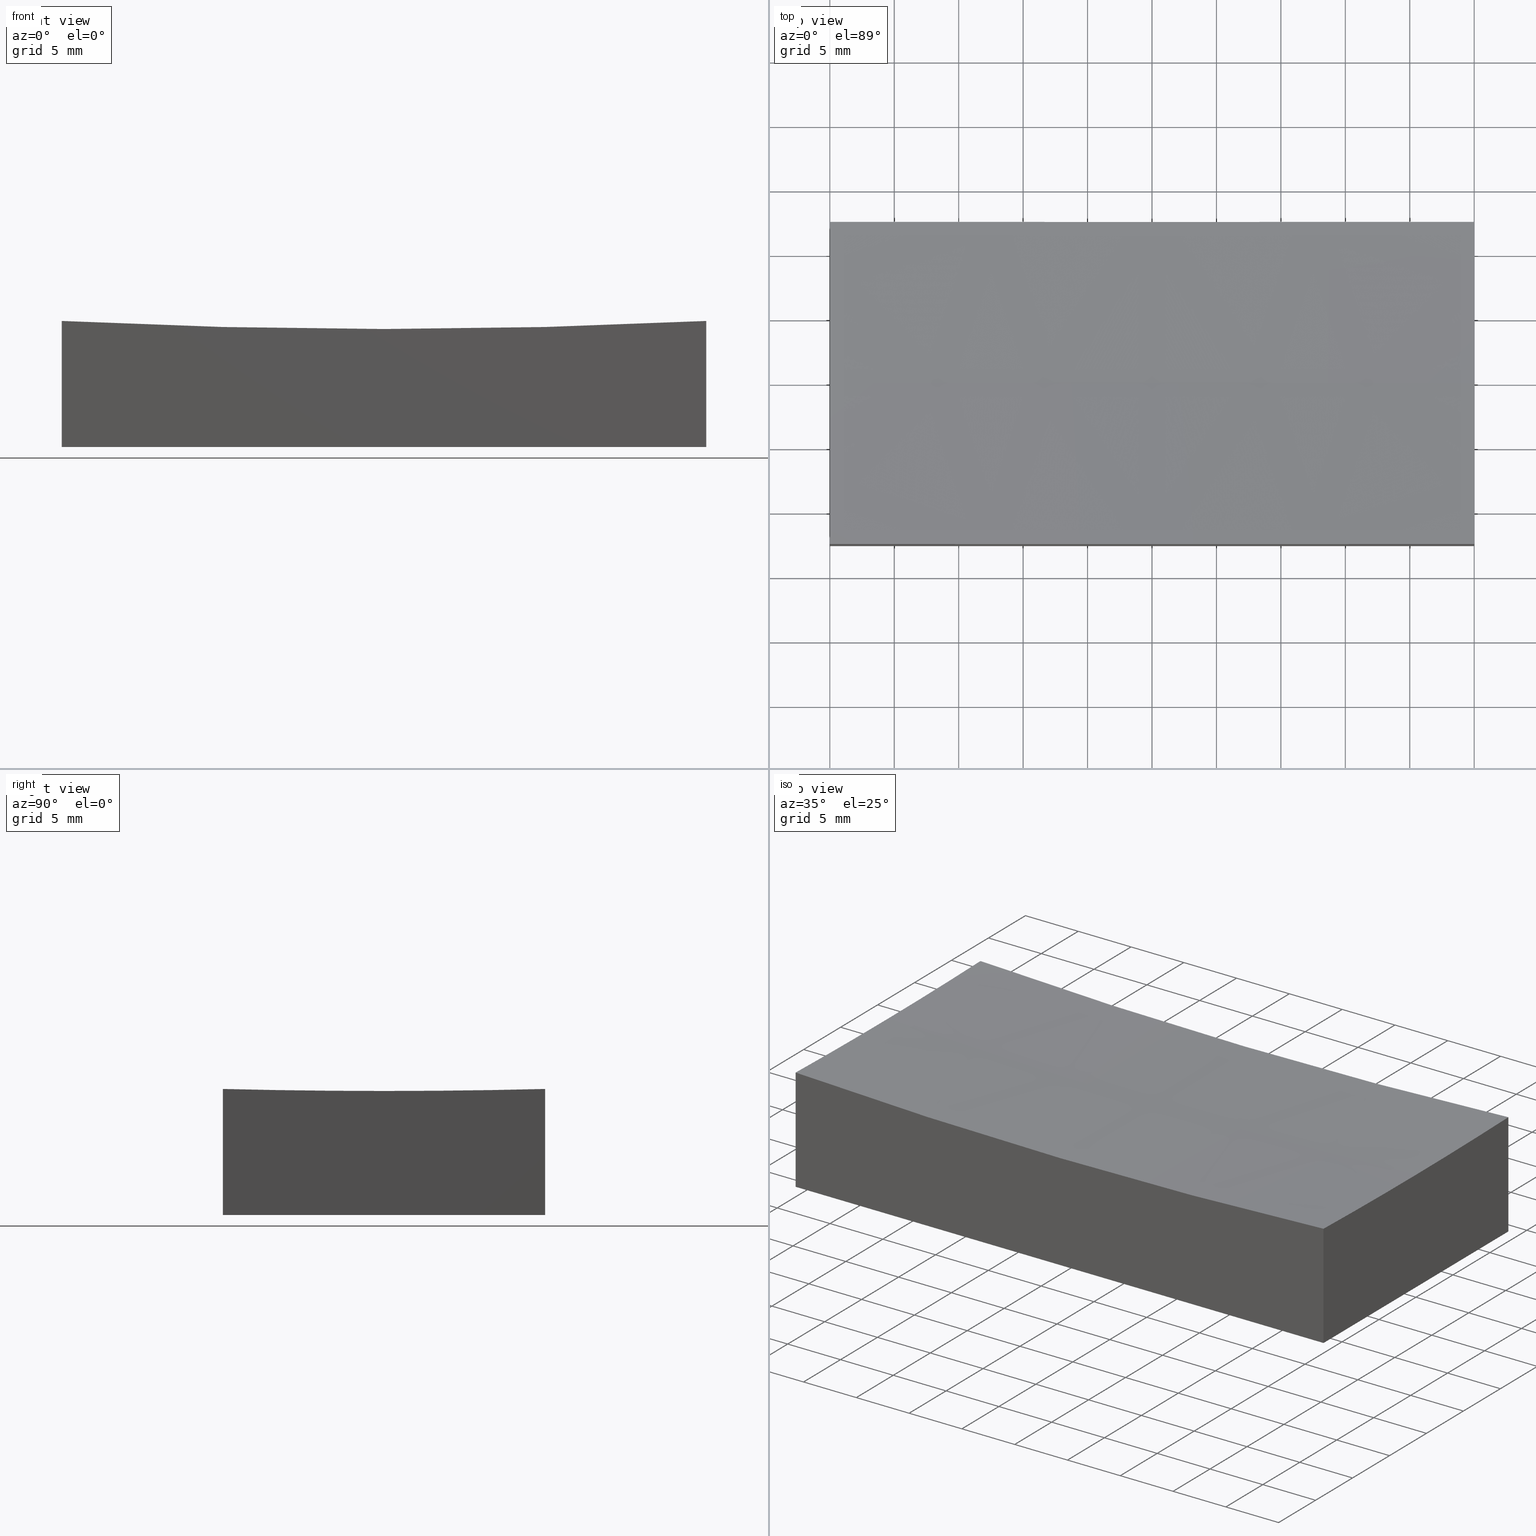
[diagram: canonical four-view strip — front | top / right | iso, engineering-drawing reading convention]
A machine part, canonical four-view strip (front | top / right | iso — engineering-drawing reading convention). The complete STEP part file that produces these views, byte-faithful:
ISO-10303-21;
HEADER;
FILE_DESCRIPTION (( 'STEP AP214' ),
    '1' );
FILE_NAME ('GM13-50x25-250.STEP',
    '2024-08-13T03:17:18',
    ( 'Windows User' ),
    ( 'P R C' ),
    'SwSTEP 2.0',
    'SolidWorks 2022',
    '' );
FILE_SCHEMA (( 'AUTOMOTIVE_DESIGN' ));
ENDSEC;

DATA;
#1 = AXIS2_PLACEMENT_3D ( 'NONE', #247, #93, #32 ) ;
#2 = FILL_AREA_STYLE_COLOUR ( '', #41 ) ;
#3 = ORIENTED_EDGE ( 'NONE', *, *, #36, .F. ) ;
#4 =( LENGTH_UNIT ( ) NAMED_UNIT ( * ) SI_UNIT ( .MILLI., .METRE. ) );
#5 = ORIENTED_EDGE ( 'NONE', *, *, #74, .F. ) ;
#6 = EDGE_CURVE ( 'NONE', #144, #97, #69, .T. ) ;
#7 = FILL_AREA_STYLE_COLOUR ( '', #22 ) ;
#8 = FACE_OUTER_BOUND ( 'NONE', #66, .T. ) ;
#9 = PRODUCT_CONTEXT ( 'NONE', #175, 'mechanical' ) ;
#10 = DIRECTION ( 'NONE',  ( 2.775557561562891351E-16, 1.000000000000000000, -0.000000000000000000 ) ) ;
#11 = ORIENTED_EDGE ( 'NONE', *, *, #61, .T. ) ;
#12 = EDGE_CURVE ( 'NONE', #127, #234, #188, .T. ) ;
#13 = CARTESIAN_POINT ( 'NONE',  ( 24.99999999999999645, -12.50000000000000000, 9.781861307103511649 ) ) ;
#14 = CIRCLE ( 'NONE', #90, 499.9999999999998863 ) ;
#15 = DIRECTION ( 'NONE',  ( -1.000000000000000000, -0.000000000000000000, -0.000000000000000000 ) ) ;
#16 = CARTESIAN_POINT ( 'NONE',  ( -25.00000000000000000, 12.50000000000000000, 15.00000000000000000 ) ) ;
#17 = CARTESIAN_POINT ( 'NONE',  ( 25.00000000000000000, -3.851859888774471706E-31, 9.625391114045534380 ) ) ;
#18 = CARTESIAN_POINT ( 'NONE',  ( -25.00000000000000000, 12.50000000000000000, 0.000000000000000000 ) ) ;
#19 = AXIS2_PLACEMENT_3D ( 'NONE', #75, #155, #98 ) ;
#20 = APPLICATION_PROTOCOL_DEFINITION ( 'draft international standard', 'automotive_design', 1998, #35 ) ;
#21 = APPLICATION_PROTOCOL_DEFINITION ( 'draft international standard', 'automotive_design', 1998, #175 ) ;
#22 = COLOUR_RGB ( '',1.000000000000000000, 1.000000000000000000, 1.000000000000000000 ) ;
#23 = UNCERTAINTY_MEASURE_WITH_UNIT (LENGTH_MEASURE( 1.000000000000000082E-05 ), #26, 'distance_accuracy_value', 'NONE');
#24 = DIRECTION ( 'NONE',  ( 1.000000000000000000, 0.000000000000000000, 0.000000000000000000 ) ) ;
#25 = ORIENTED_EDGE ( 'NONE', *, *, #120, .F. ) ;
#26 =( LENGTH_UNIT ( ) NAMED_UNIT ( * ) SI_UNIT ( .MILLI., .METRE. ) );
#27 = VERTEX_POINT ( 'NONE', #51 ) ;
#28 = LINE ( 'NONE', #109, #128 ) ;
#29 = AXIS2_PLACEMENT_3D ( 'NONE', #16, #158, #42 ) ;
#30 = LINE ( 'NONE', #31, #209 ) ;
#31 = CARTESIAN_POINT ( 'NONE',  ( -25.00000000000000000, 12.50000000000000000, 15.00000000000000000 ) ) ;
#32 = DIRECTION ( 'NONE',  ( -2.775557561562891351E-16, -1.000000000000000000, 0.000000000000000000 ) ) ;
#33 = AXIS2_PLACEMENT_3D ( 'NONE', #172, #248, #216 ) ;
#34 = CARTESIAN_POINT ( 'NONE',  ( 0.000000000000000000, -12.49999999999999645, 509.0000000000000000 ) ) ;
#35 = APPLICATION_CONTEXT ( 'automotive_design' ) ;
#36 = EDGE_CURVE ( 'NONE', #140, #234, #28, .T. ) ;
#37 = CARTESIAN_POINT ( 'NONE',  ( -25.00000000000000000, -3.061616997868383043E-15, 9.625391114045534380 ) ) ;
#38 =( LENGTH_UNIT ( ) NAMED_UNIT ( * ) SI_UNIT ( .MILLI., .METRE. ) );
#39 = DIRECTION ( 'NONE',  ( -1.387778780781445676E-16, 1.000000000000000000, 0.000000000000000000 ) ) ;
#40 = PLANE ( 'NONE',  #29 ) ;
#41 = COLOUR_RGB ( '',1.000000000000000000, 1.000000000000000000, 1.000000000000000000 ) ;
#42 = DIRECTION ( 'NONE',  ( 0.000000000000000000, -0.000000000000000000, -1.000000000000000000 ) ) ;
#43 = ORIENTED_EDGE ( 'NONE', *, *, #12, .F. ) ;
#44 = VECTOR ( 'NONE', #15, 1000.000000000000000 ) ;
#45 = PRESENTATION_STYLE_ASSIGNMENT (( #239 ) ) ;
#46 = ORIENTED_EDGE ( 'NONE', *, *, #12, .T. ) ;
#47 = ADVANCED_BREP_SHAPE_REPRESENTATION ( 'GM13-50x25-250', ( #222, #55 ), #112 ) ;
#48 = ADVANCED_FACE ( 'NONE', ( #8 ), #126, .F. ) ;
#49 = VERTEX_POINT ( 'NONE', #166 ) ;
#50 =( NAMED_UNIT ( * ) PLANE_ANGLE_UNIT ( ) SI_UNIT ( $, .RADIAN. ) );
#51 = CARTESIAN_POINT ( 'NONE',  ( 25.00000000000000355, 12.50000000000000000, 0.000000000000000000 ) ) ;
#52 = EDGE_CURVE ( 'NONE', #234, #27, #223, .T. ) ;
#53 = CARTESIAN_POINT ( 'NONE',  ( -25.00000000000000000, 12.50000000000000000, 0.000000000000000000 ) ) ;
#54 = DIRECTION ( 'NONE',  ( 0.000000000000000000, 0.000000000000000000, 1.000000000000000000 ) ) ;
#55 = AXIS2_PLACEMENT_3D ( 'NONE', #224, #203, #24 ) ;
#56 = CARTESIAN_POINT ( 'NONE',  ( -25.00000000000000000, 12.50000000000000000, 9.781861307103511649 ) ) ;
#57 = CARTESIAN_POINT ( 'NONE',  ( 25.00000000000000000, -6.938893903907228378E-15, 509.0000000000000000 ) ) ;
#58 = VECTOR ( 'NONE', #147, 1000.000000000000000 ) ;
#59 = PRODUCT_DEFINITION ( 'δ֪', '', #186, #184 ) ;
#60 = CARTESIAN_POINT ( 'NONE',  ( -25.00000000000000000, 12.50000000000000000, 15.00000000000000000 ) ) ;
#61 = EDGE_CURVE ( 'NONE', #71, #49, #30, .T. ) ;
#62 = PRESENTATION_LAYER_ASSIGNMENT (  '', '', ( #157 ) ) ;
#63 = CARTESIAN_POINT ( 'NONE',  ( 24.99999999999999645, -12.50000000000000000, 0.000000000000000000 ) ) ;
#64 = CIRCLE ( 'NONE', #205, 499.8437255783051683 ) ;
#65 = LINE ( 'NONE', #251, #142 ) ;
#66 = EDGE_LOOP ( 'NONE', ( #214, #207, #5, #107, #100 ) ) ;
#67 = AXIS2_PLACEMENT_3D ( 'NONE', #57, #228, #111 ) ;
#68 = ORIENTED_EDGE ( 'NONE', *, *, #74, .T. ) ;
#69 = CIRCLE ( 'NONE', #179, 499.3746088859545011 ) ;
#70 =( NAMED_UNIT ( * ) SI_UNIT ( $, .STERADIAN. ) SOLID_ANGLE_UNIT ( ) );
#71 = VERTEX_POINT ( 'NONE', #56 ) ;
#72 = ORIENTED_EDGE ( 'NONE', *, *, #52, .F. ) ;
#73 = DIRECTION ( 'NONE',  ( 1.224646799147353207E-16, -1.000000000000000000, -9.557981066130911132E-36 ) ) ;
#74 = EDGE_CURVE ( 'NONE', #190, #180, #14, .T. ) ;
#75 = CARTESIAN_POINT ( 'NONE',  ( 0.000000000000000000, 0.000000000000000000, 0.000000000000000000 ) ) ;
#76 = ORIENTED_EDGE ( 'NONE', *, *, #61, .F. ) ;
#77 = MECHANICAL_DESIGN_GEOMETRIC_PRESENTATION_REPRESENTATION (  '', ( #157 ), #235 ) ;
#78 = PRESENTATION_STYLE_ASSIGNMENT (( #215 ) ) ;
#79 = ORIENTED_EDGE ( 'NONE', *, *, #102, .T. ) ;
#80 = LINE ( 'NONE', #230, #201 ) ;
#81 = ORIENTED_EDGE ( 'NONE', *, *, #6, .T. ) ;
#82 = DIRECTION ( 'NONE',  ( -0.000000000000000000, -0.000000000000000000, -1.000000000000000000 ) ) ;
#83 = ORIENTED_EDGE ( 'NONE', *, *, #94, .F. ) ;
#84 =( NAMED_UNIT ( * ) SI_UNIT ( $, .STERADIAN. ) SOLID_ANGLE_UNIT ( ) );
#85 = EDGE_CURVE ( 'NONE', #232, #71, #113, .T. ) ;
#86 = DIRECTION ( 'NONE',  ( 1.000000000000000000, 0.000000000000000000, 0.000000000000000000 ) ) ;
#87 = DIRECTION ( 'NONE',  ( 1.000000000000000000, 0.000000000000000000, 0.000000000000000000 ) ) ;
#88 = ORIENTED_EDGE ( 'NONE', *, *, #85, .F. ) ;
#89 = ORIENTED_EDGE ( 'NONE', *, *, #102, .F. ) ;
#90 = AXIS2_PLACEMENT_3D ( 'NONE', #171, #110, #54 ) ;
#91 = FACE_OUTER_BOUND ( 'NONE', #119, .T. ) ;
#92 = PLANE ( 'NONE',  #33 ) ;
#93 = DIRECTION ( 'NONE',  ( -1.000000000000000000, 2.775557561562891351E-16, 0.000000000000000000 ) ) ;
#94 = EDGE_CURVE ( 'NONE', #127, #190, #189, .T. ) ;
#95 = STYLED_ITEM ( 'NONE', ( #78 ), #222 ) ;
#96 = FACE_OUTER_BOUND ( 'NONE', #176, .T. ) ;
#97 = VERTEX_POINT ( 'NONE', #192 ) ;
#98 = DIRECTION ( 'NONE',  ( 1.000000000000000000, 0.000000000000000000, 0.000000000000000000 ) ) ;
#99 = CARTESIAN_POINT ( 'NONE',  ( 25.00000000000000000, -6.938893903907228378E-15, 509.0000000000000000 ) ) ;
#100 = ORIENTED_EDGE ( 'NONE', *, *, #85, .T. ) ;
#101 = VECTOR ( 'NONE', #10, 1000.000000000000000 ) ;
#102 = EDGE_CURVE ( 'NONE', #97, #127, #64, .T. ) ;
#103 = UNCERTAINTY_MEASURE_WITH_UNIT (LENGTH_MEASURE( 1.000000000000000082E-05 ), #4, 'distance_accuracy_value', 'NONE');
#104 = ADVANCED_FACE ( 'NONE', ( #91 ), #114, .F. ) ;
#105 = ORIENTED_EDGE ( 'NONE', *, *, #120, .T. ) ;
#106 = ORIENTED_EDGE ( 'NONE', *, *, #108, .F. ) ;
#107 = ORIENTED_EDGE ( 'NONE', *, *, #246, .T. ) ;
#108 = EDGE_CURVE ( 'NONE', #144, #180, #173, .T. ) ;
#109 = CARTESIAN_POINT ( 'NONE',  ( -24.99999999999999645, -12.50000000000000000, 0.000000000000000000 ) ) ;
#110 = DIRECTION ( 'NONE',  ( 0.000000000000000000, 1.000000000000000000, -0.000000000000000000 ) ) ;
#111 = DIRECTION ( 'NONE',  ( -2.779033527310119773E-16, -1.000000000000000000, 0.000000000000000000 ) ) ;
#112 =( GEOMETRIC_REPRESENTATION_CONTEXT ( 3 ) GLOBAL_UNCERTAINTY_ASSIGNED_CONTEXT ( ( #143 ) ) GLOBAL_UNIT_ASSIGNED_CONTEXT ( ( #38, #50, #70 ) ) REPRESENTATION_CONTEXT ( 'NONE', 'WORKASPACE' ) );
#113 = CIRCLE ( 'NONE', #135, 499.8437255783051683 ) ;
#114 = PLANE ( 'NONE',  #1 ) ;
#115 = FILL_AREA_STYLE ('',( #2 ) ) ;
#116 = ORIENTED_EDGE ( 'NONE', *, *, #195, .T. ) ;
#117 = FACE_OUTER_BOUND ( 'NONE', #240, .T. ) ;
#118 = FACE_OUTER_BOUND ( 'NONE', #212, .T. ) ;
#119 = EDGE_LOOP ( 'NONE', ( #83, #46, #165, #218, #198 ) ) ;
#120 = EDGE_CURVE ( 'NONE', #27, #49, #148, .T. ) ;
#121 =( NAMED_UNIT ( * ) PLANE_ANGLE_UNIT ( ) SI_UNIT ( $, .RADIAN. ) );
#122 = AXIS2_PLACEMENT_3D ( 'NONE', #177, #199, #139 ) ;
#123 = CARTESIAN_POINT ( 'NONE',  ( -25.00000000000000000, -3.469446951953614189E-15, 509.0000000000000000 ) ) ;
#124 =( NAMED_UNIT ( * ) PLANE_ANGLE_UNIT ( ) SI_UNIT ( $, .RADIAN. ) );
#125 = DIRECTION ( 'NONE',  ( -1.000000000000000000, -1.387778780781445676E-16, 0.000000000000000000 ) ) ;
#126 = SPHERICAL_SURFACE ( 'NONE', #229, 500.0000000000000000 ) ;
#127 = VERTEX_POINT ( 'NONE', #13 ) ;
#128 = VECTOR ( 'NONE', #86, 1000.000000000000000 ) ;
#129 = ADVANCED_FACE ( 'NONE', ( #151 ), #92, .F. ) ;
#130 = CARTESIAN_POINT ( 'NONE',  ( 0.000000000000000000, 12.50000000000000000, 509.0000000000000000 ) ) ;
#131 = DIRECTION ( 'NONE',  ( -0.000000000000000000, 1.000000000000000000, -0.000000000000000000 ) ) ;
#132 = AXIS2_PLACEMENT_3D ( 'NONE', #123, #156, #137 ) ;
#133 = CARTESIAN_POINT ( 'NONE',  ( 3.057714655955275700E-14, 0.000000000000000000, 9.000000000000007105 ) ) ;
#134 = DIRECTION ( 'NONE',  ( 1.000000000000000000, -2.775557561562891351E-16, -0.000000000000000000 ) ) ;
#135 = AXIS2_PLACEMENT_3D ( 'NONE', #130, #131, #191 ) ;
#136 = DIRECTION ( 'NONE',  ( 1.387778780781445676E-16, -1.000000000000000000, 0.000000000000000000 ) ) ;
#137 = DIRECTION ( 'NONE',  ( -1.389516763655059887E-16, 1.000000000000000000, 0.000000000000000000 ) ) ;
#138 = ORIENTED_EDGE ( 'NONE', *, *, #6, .F. ) ;
#139 = DIRECTION ( 'NONE',  ( 1.000000000000000000, 0.000000000000000000, 0.000000000000000000 ) ) ;
#140 = VERTEX_POINT ( 'NONE', #160 ) ;
#141 = ADVANCED_FACE ( 'NONE', ( #236 ), #40, .F. ) ;
#142 = VECTOR ( 'NONE', #181, 1000.000000000000000 ) ;
#143 = UNCERTAINTY_MEASURE_WITH_UNIT (LENGTH_MEASURE( 1.000000000000000082E-05 ), #38, 'distance_accuracy_value', 'NONE');
#144 = VERTEX_POINT ( 'NONE', #37 ) ;
#145 = CARTESIAN_POINT ( 'NONE',  ( 24.99999999999999645, -12.50000000000000000, 15.00000000000000000 ) ) ;
#146 = CIRCLE ( 'NONE', #132, 499.3746088859545011 ) ;
#147 = DIRECTION ( 'NONE',  ( -0.000000000000000000, -0.000000000000000000, -1.000000000000000000 ) ) ;
#148 = LINE ( 'NONE', #53, #44 ) ;
#149 = ORIENTED_EDGE ( 'NONE', *, *, #94, .T. ) ;
#150 = DIRECTION ( 'NONE',  ( -0.000000000000000000, -0.000000000000000000, -1.000000000000000000 ) ) ;
#151 = FACE_OUTER_BOUND ( 'NONE', #161, .T. ) ;
#152 = PRODUCT ( 'GM13-50x25-250', 'GM13-50x25-250', '', ( #9 ) ) ;
#153 = PRESENTATION_LAYER_ASSIGNMENT (  '', '', ( #95 ) ) ;
#154 = ADVANCED_FACE ( 'NONE', ( #117 ), #197, .F. ) ;
#155 = DIRECTION ( 'NONE',  ( -0.000000000000000000, 0.000000000000000000, 1.000000000000000000 ) ) ;
#156 = DIRECTION ( 'NONE',  ( -1.000000000000000000, -1.387778780781445676E-16, 0.000000000000000000 ) ) ;
#157 = STYLED_ITEM ( 'NONE', ( #45 ), #47 ) ;
#158 = DIRECTION ( 'NONE',  ( 0.000000000000000000, -1.000000000000000000, 0.000000000000000000 ) ) ;
#159 = AXIS2_PLACEMENT_3D ( 'NONE', #244, #73, #194 ) ;
#160 = CARTESIAN_POINT ( 'NONE',  ( -24.99999999999999645, -12.50000000000000000, 0.000000000000000000 ) ) ;
#161 = EDGE_LOOP ( 'NONE', ( #89, #243, #167, #43 ) ) ;
#162 = SPHERICAL_SURFACE ( 'NONE', #122, 500.0000000000000000 ) ;
#163 = ORIENTED_EDGE ( 'NONE', *, *, #195, .F. ) ;
#164 = CLOSED_SHELL ( 'NONE', ( #48, #154, #129, #104, #141, #204, #219 ) ) ;
#165 = ORIENTED_EDGE ( 'NONE', *, *, #52, .T. ) ;
#166 = CARTESIAN_POINT ( 'NONE',  ( -25.00000000000000000, 12.50000000000000000, 0.000000000000000000 ) ) ;
#167 = ORIENTED_EDGE ( 'NONE', *, *, #36, .T. ) ;
#168 = EDGE_CURVE ( 'NONE', #71, #144, #146, .T. ) ;
#169 = DIRECTION ( 'NONE',  ( -0.000000000000000000, -1.000000000000000000, -0.000000000000000000 ) ) ;
#170 = ORIENTED_EDGE ( 'NONE', *, *, #210, .T. ) ;
#171 = CARTESIAN_POINT ( 'NONE',  ( 0.000000000000000000, 0.000000000000000000, 509.0000000000000000 ) ) ;
#172 = CARTESIAN_POINT ( 'NONE',  ( -24.99999999999999645, -12.50000000000000000, 15.00000000000000000 ) ) ;
#173 = CIRCLE ( 'NONE', #159, 500.0000000000000000 ) ;
#174 = CARTESIAN_POINT ( 'NONE',  ( 25.00000000000000355, 12.50000000000000000, 9.781861307103511649 ) ) ;
#175 = APPLICATION_CONTEXT ( 'automotive_design' ) ;
#176 = EDGE_LOOP ( 'NONE', ( #106, #81, #79, #149, #68 ) ) ;
#177 = CARTESIAN_POINT ( 'NONE',  ( 0.000000000000000000, 0.000000000000000000, 509.0000000000000000 ) ) ;
#178 = DIRECTION ( 'NONE',  ( -2.779033527310119773E-16, -1.000000000000000000, 0.000000000000000000 ) ) ;
#179 = AXIS2_PLACEMENT_3D ( 'NONE', #226, #125, #185 ) ;
#180 = VERTEX_POINT ( 'NONE', #133 ) ;
#181 = DIRECTION ( 'NONE',  ( -0.000000000000000000, -0.000000000000000000, -1.000000000000000000 ) ) ;
#182 = EDGE_LOOP ( 'NONE', ( #88, #170, #105, #76 ) ) ;
#183 = SHAPE_DEFINITION_REPRESENTATION ( #213, #47 ) ;
#184 = PRODUCT_DEFINITION_CONTEXT ( 'detailed design', #35, 'design' ) ;
#185 = DIRECTION ( 'NONE',  ( -1.389516763655059887E-16, 1.000000000000000000, 0.000000000000000000 ) ) ;
#186 = PRODUCT_DEFINITION_FORMATION_WITH_SPECIFIED_SOURCE ( '�κ�', '', #152, .NOT_KNOWN. ) ;
#187 = DIRECTION ( 'NONE',  ( 0.000000000000000000, -1.000000000000000000, -0.000000000000000000 ) ) ;
#188 = LINE ( 'NONE', #145, #58 ) ;
#189 = CIRCLE ( 'NONE', #67, 499.3746088859545011 ) ;
#190 = VERTEX_POINT ( 'NONE', #17 ) ;
#191 = DIRECTION ( 'NONE',  ( 0.000000000000000000, 0.000000000000000000, -1.000000000000000000 ) ) ;
#192 = CARTESIAN_POINT ( 'NONE',  ( -24.99999999999998934, -12.49999999999999645, 9.781861307103511649 ) ) ;
#193 = AXIS2_PLACEMENT_3D ( 'NONE', #60, #217, #39 ) ;
#194 = DIRECTION ( 'NONE',  ( 1.000000000000000000, 1.224646799147353207E-16, 0.000000000000000000 ) ) ;
#195 = EDGE_CURVE ( 'NONE', #49, #140, #250, .T. ) ;
#196 = SURFACE_SIDE_STYLE ('',( #200 ) ) ;
#197 = PLANE ( 'NONE',  #193 ) ;
#198 = ORIENTED_EDGE ( 'NONE', *, *, #246, .F. ) ;
#199 = DIRECTION ( 'NONE',  ( 0.000000000000000000, -1.000000000000000000, -0.000000000000000000 ) ) ;
#200 = SURFACE_STYLE_FILL_AREA ( #115 ) ;
#201 = VECTOR ( 'NONE', #82, 1000.000000000000000 ) ;
#202 = PRODUCT_RELATED_PRODUCT_CATEGORY ( 'part', '', ( #152 ) ) ;
#203 = DIRECTION ( 'NONE',  ( 0.000000000000000000, 0.000000000000000000, 1.000000000000000000 ) ) ;
#204 = ADVANCED_FACE ( 'NONE', ( #118 ), #211, .F. ) ;
#205 = AXIS2_PLACEMENT_3D ( 'NONE', #34, #169, #227 ) ;
#206 = CARTESIAN_POINT ( 'NONE',  ( 0.000000000000000000, 0.000000000000000000, 509.0000000000000000 ) ) ;
#207 = ORIENTED_EDGE ( 'NONE', *, *, #108, .T. ) ;
#208 = CIRCLE ( 'NONE', #220, 499.3746088859545011 ) ;
#209 = VECTOR ( 'NONE', #150, 1000.000000000000000 ) ;
#210 = EDGE_CURVE ( 'NONE', #232, #27, #80, .T. ) ;
#211 = PLANE ( 'NONE',  #19 ) ;
#212 = EDGE_LOOP ( 'NONE', ( #163, #25, #72, #3 ) ) ;
#213 = PRODUCT_DEFINITION_SHAPE ( 'NONE', 'NONE',  #59 ) ;
#214 = ORIENTED_EDGE ( 'NONE', *, *, #168, .T. ) ;
#215 = SURFACE_STYLE_USAGE ( .BOTH. , #196 ) ;
#216 = DIRECTION ( 'NONE',  ( 0.000000000000000000, -0.000000000000000000, 1.000000000000000000 ) ) ;
#217 = DIRECTION ( 'NONE',  ( 1.000000000000000000, 1.387778780781445676E-16, -0.000000000000000000 ) ) ;
#218 = ORIENTED_EDGE ( 'NONE', *, *, #210, .F. ) ;
#219 = ADVANCED_FACE ( 'NONE', ( #96 ), #162, .F. ) ;
#220 = AXIS2_PLACEMENT_3D ( 'NONE', #99, #134, #178 ) ;
#221 = SURFACE_SIDE_STYLE ('',( #238 ) ) ;
#222 = MANIFOLD_SOLID_BREP ( '�г�-��ת1', #164 ) ;
#223 = LINE ( 'NONE', #241, #101 ) ;
#224 = CARTESIAN_POINT ( 'NONE',  ( 0.000000000000000000, 0.000000000000000000, 0.000000000000000000 ) ) ;
#225 = FILL_AREA_STYLE ('',( #7 ) ) ;
#226 = CARTESIAN_POINT ( 'NONE',  ( -25.00000000000000000, -3.469446951953614189E-15, 509.0000000000000000 ) ) ;
#227 = DIRECTION ( 'NONE',  ( 1.421085471520200214E-14, 0.000000000000000000, 1.000000000000000000 ) ) ;
#228 = DIRECTION ( 'NONE',  ( 1.000000000000000000, -2.775557561562891351E-16, -0.000000000000000000 ) ) ;
#229 = AXIS2_PLACEMENT_3D ( 'NONE', #206, #187, #87 ) ;
#230 = CARTESIAN_POINT ( 'NONE',  ( 25.00000000000000355, 12.50000000000000000, 15.00000000000000000 ) ) ;
#231 =( NAMED_UNIT ( * ) SI_UNIT ( $, .STERADIAN. ) SOLID_ANGLE_UNIT ( ) );
#232 = VERTEX_POINT ( 'NONE', #174 ) ;
#233 = EDGE_CURVE ( 'NONE', #97, #140, #65, .T. ) ;
#234 = VERTEX_POINT ( 'NONE', #63 ) ;
#235 =( GEOMETRIC_REPRESENTATION_CONTEXT ( 3 ) GLOBAL_UNCERTAINTY_ASSIGNED_CONTEXT ( ( #23 ) ) GLOBAL_UNIT_ASSIGNED_CONTEXT ( ( #26, #124, #84 ) ) REPRESENTATION_CONTEXT ( 'NONE', 'WORKASPACE' ) );
#236 = FACE_OUTER_BOUND ( 'NONE', #182, .T. ) ;
#237 = MECHANICAL_DESIGN_GEOMETRIC_PRESENTATION_REPRESENTATION (  '', ( #95 ), #249 ) ;
#238 = SURFACE_STYLE_FILL_AREA ( #225 ) ;
#239 = SURFACE_STYLE_USAGE ( .BOTH. , #221 ) ;
#240 = EDGE_LOOP ( 'NONE', ( #245, #11, #116, #252, #138 ) ) ;
#241 = CARTESIAN_POINT ( 'NONE',  ( 25.00000000000000355, 12.50000000000000000, 0.000000000000000000 ) ) ;
#242 = VECTOR ( 'NONE', #136, 1000.000000000000000 ) ;
#243 = ORIENTED_EDGE ( 'NONE', *, *, #233, .T. ) ;
#244 = CARTESIAN_POINT ( 'NONE',  ( 0.000000000000000000, 0.000000000000000000, 509.0000000000000000 ) ) ;
#245 = ORIENTED_EDGE ( 'NONE', *, *, #168, .F. ) ;
#246 = EDGE_CURVE ( 'NONE', #190, #232, #208, .T. ) ;
#247 = CARTESIAN_POINT ( 'NONE',  ( 25.00000000000000355, 12.50000000000000000, 15.00000000000000000 ) ) ;
#248 = DIRECTION ( 'NONE',  ( 0.000000000000000000, 1.000000000000000000, 0.000000000000000000 ) ) ;
#249 =( GEOMETRIC_REPRESENTATION_CONTEXT ( 3 ) GLOBAL_UNCERTAINTY_ASSIGNED_CONTEXT ( ( #103 ) ) GLOBAL_UNIT_ASSIGNED_CONTEXT ( ( #4, #121, #231 ) ) REPRESENTATION_CONTEXT ( 'NONE', 'WORKASPACE' ) );
#250 = LINE ( 'NONE', #18, #242 ) ;
#251 = CARTESIAN_POINT ( 'NONE',  ( -24.99999999999999645, -12.50000000000000000, 15.00000000000000000 ) ) ;
#252 = ORIENTED_EDGE ( 'NONE', *, *, #233, .F. ) ;
ENDSEC;
END-ISO-10303-21;
